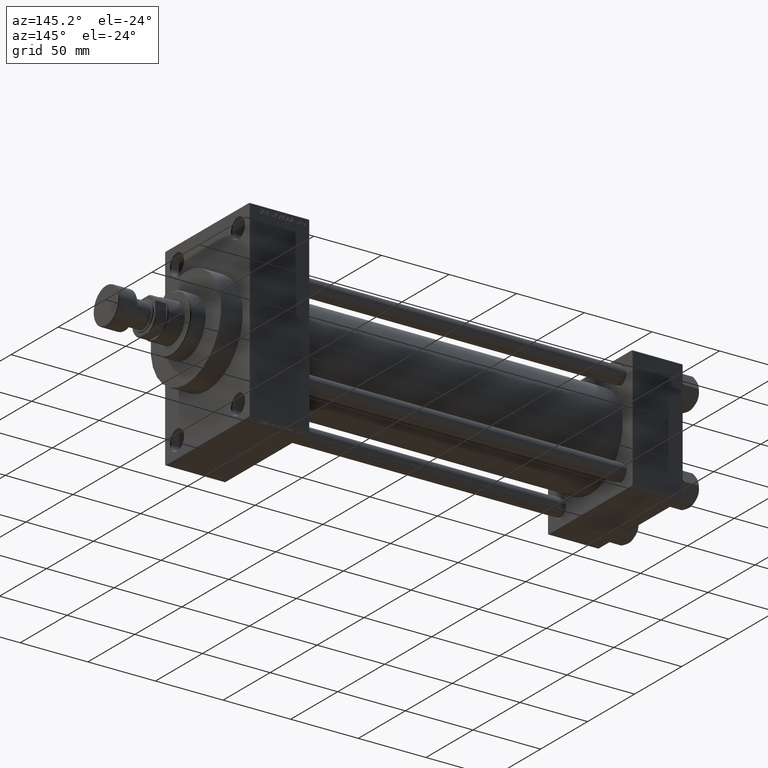
[diagram: clean part render]
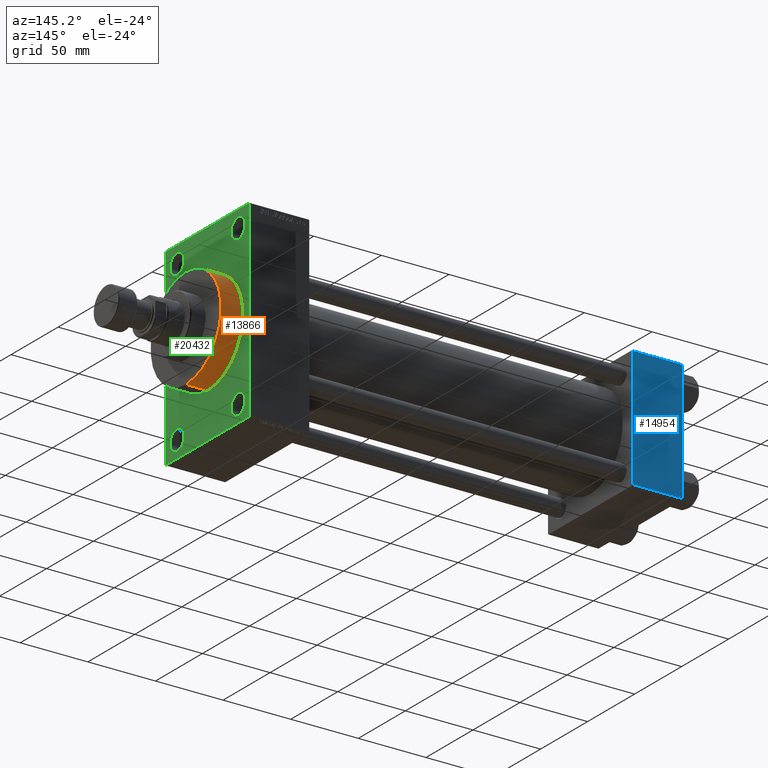
[diagram: same view with three faces highlighted in distinct colors, each labeled with its STEP entity id]
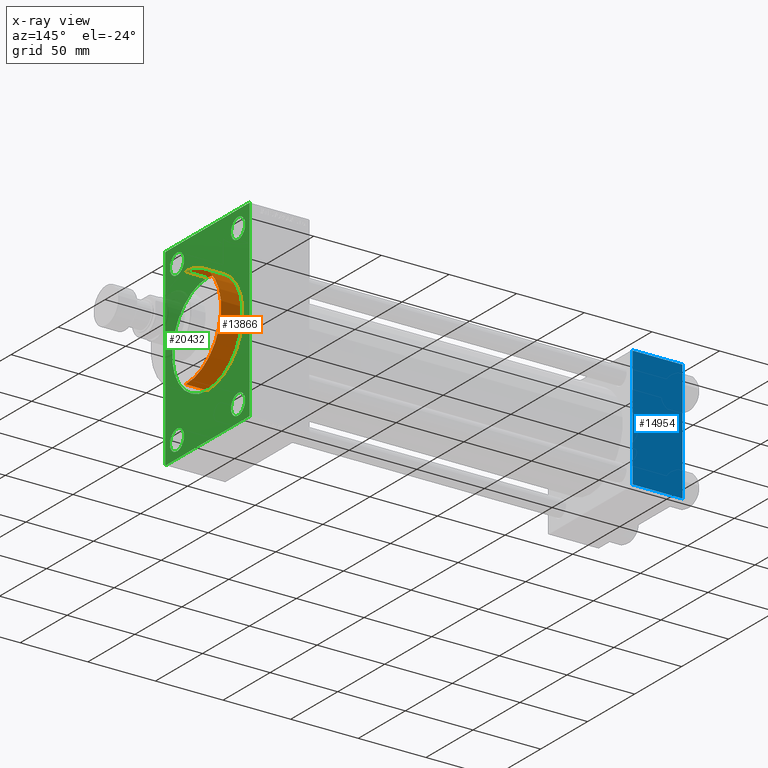
[diagram: x-ray of the same camera — body ghosted, the three highlighted faces saturated]
A machine part, auxiliary view with three faces highlighted in distinct colors.
The next image is the same camera in x-ray (body ghosted, the three faces saturated) — at least one of them is partly hidden behind the body in this view.
Their STEP definitions:

[orange] entity #13866 — the highlighted cylindrical surface (partial cylindrical patch) has radius 37.5 mm, axis along (-1, -0, -0).
#349 = AXIS2_PLACEMENT_3D ( 'NONE', #29204, #28963, #39817 ) ;
#1273 = CARTESIAN_POINT ( 'NONE',  ( 335.9999999999999432, 4.592425496802575156E-15, -37.50000000000000711 ) ) ;
#4486 = AXIS2_PLACEMENT_3D ( 'NONE', #5933, #31743, #18153 ) ;
#4635 = LINE ( 'NONE', #1273, #47375 ) ;
#5492 = ORIENTED_EDGE ( 'NONE', *, *, #46795, .F. ) ;
#5684 = VECTOR ( 'NONE', #19776, 1000.000000000000000 ) ;
#5933 = CARTESIAN_POINT ( 'NONE',  ( 335.9999999999999432, 0.000000000000000000, 0.000000000000000000 ) ) ;
#6948 = ORIENTED_EDGE ( 'NONE', *, *, #11194, .F. ) ;
#11038 = CARTESIAN_POINT ( 'NONE',  ( 335.9999999999999432, 4.592425496802575156E-15, -37.50000000000000711 ) ) ;
#11194 = EDGE_CURVE ( 'NONE', #21022, #46215, #15449, .T. ) ;
#13866 = ADVANCED_FACE ( 'NONE', ( #38399 ), #24130, .T. ) ;
#15055 = ORIENTED_EDGE ( 'NONE', *, *, #33110, .T. ) ;
#15449 = LINE ( 'NONE', #45101, #5684 ) ;
#17112 = CARTESIAN_POINT ( 'NONE',  ( 335.9999999999999432, 0.000000000000000000, 37.50000000000000711 ) ) ;
#18153 = DIRECTION ( 'NONE',  ( 0.000000000000000000, 0.000000000000000000, -1.000000000000000000 ) ) ;
#18808 = CIRCLE ( 'NONE', #349, 37.50000000000000711 ) ;
#19776 = DIRECTION ( 'NONE',  ( -1.000000000000000000, -0.000000000000000000, -0.000000000000000000 ) ) ;
#21022 = VERTEX_POINT ( 'NONE', #17112 ) ;
#22246 = DIRECTION ( 'NONE',  ( -1.000000000000000000, -0.000000000000000000, -0.000000000000000000 ) ) ;
#23896 = DIRECTION ( 'NONE',  ( 0.000000000000000000, 0.000000000000000000, 1.000000000000000000 ) ) ;
#24130 = CYLINDRICAL_SURFACE ( 'NONE', #46435, 37.50000000000000711 ) ;
#27888 = ORIENTED_EDGE ( 'NONE', *, *, #38853, .T. ) ;
#28963 = DIRECTION ( 'NONE',  ( 1.000000000000000000, 0.000000000000000000, 0.000000000000000000 ) ) ;
#29204 = CARTESIAN_POINT ( 'NONE',  ( 319.9999999999999432, 0.000000000000000000, 0.000000000000000000 ) ) ;
#31594 = VERTEX_POINT ( 'NONE', #33087 ) ;
#31743 = DIRECTION ( 'NONE',  ( 1.000000000000000000, 0.000000000000000000, 0.000000000000000000 ) ) ;
#33087 = CARTESIAN_POINT ( 'NONE',  ( 319.9999999999999432, 4.592425496802575156E-15, -37.50000000000000711 ) ) ;
#33110 = EDGE_CURVE ( 'NONE', #31594, #46215, #18808, .T. ) ;
#33505 = EDGE_LOOP ( 'NONE', ( #5492, #27888, #15055, #6948 ) ) ;
#36771 = VERTEX_POINT ( 'NONE', #11038 ) ;
#38399 = FACE_OUTER_BOUND ( 'NONE', #33505, .T. ) ;
#38853 = EDGE_CURVE ( 'NONE', #36771, #31594, #4635, .T. ) ;
#38868 = DIRECTION ( 'NONE',  ( -1.000000000000000000, -0.000000000000000000, -0.000000000000000000 ) ) ;
#39817 = DIRECTION ( 'NONE',  ( 0.000000000000000000, 0.000000000000000000, -1.000000000000000000 ) ) ;
#45101 = CARTESIAN_POINT ( 'NONE',  ( 335.9999999999999432, 0.000000000000000000, 37.50000000000000711 ) ) ;
#45866 = CARTESIAN_POINT ( 'NONE',  ( 335.9999999999999432, 0.000000000000000000, 0.000000000000000000 ) ) ;
#46074 = CIRCLE ( 'NONE', #4486, 37.50000000000000711 ) ;
#46215 = VERTEX_POINT ( 'NONE', #47053 ) ;
#46435 = AXIS2_PLACEMENT_3D ( 'NONE', #45866, #38868, #23896 ) ;
#46795 = EDGE_CURVE ( 'NONE', #36771, #21022, #46074, .T. ) ;
#47053 = CARTESIAN_POINT ( 'NONE',  ( 319.9999999999999432, 0.000000000000000000, 37.50000000000000711 ) ) ;
#47375 = VECTOR ( 'NONE', #22246, 1000.000000000000000 ) ;

[blue] entity #14954 — the highlighted planar face has unit normal (0, 1, 0).
#727 = VERTEX_POINT ( 'NONE', #1815 ) ;
#901 = DIRECTION ( 'NONE',  ( 0.000000000000000000, 0.000000000000000000, -1.000000000000000000 ) ) ;
#1140 = CARTESIAN_POINT ( 'NONE',  ( 37.00000000000000000, 44.99999999999998579, 45.00000000000001421 ) ) ;
#1815 = CARTESIAN_POINT ( 'NONE',  ( 37.00000000000000000, 44.99999999999998579, 44.50000000000001421 ) ) ;
#2821 = LINE ( 'NONE', #13030, #3386 ) ;
#3386 = VECTOR ( 'NONE', #25222, 1000.000000000000000 ) ;
#4171 = ORIENTED_EDGE ( 'NONE', *, *, #22675, .T. ) ;
#6224 = ORIENTED_EDGE ( 'NONE', *, *, #46681, .T. ) ;
#6603 = FACE_OUTER_BOUND ( 'NONE', #15131, .T. ) ;
#9541 = CARTESIAN_POINT ( 'NONE',  ( 0.000000000000000000, 44.99999999999998579, 44.50000000000001421 ) ) ;
#11360 = EDGE_CURVE ( 'NONE', #25230, #18169, #2821, .T. ) ;
#12952 = VECTOR ( 'NONE', #901, 1000.000000000000000 ) ;
#13030 = CARTESIAN_POINT ( 'NONE',  ( 37.00000000000000000, 44.99999999999998579, -44.49999999999998579 ) ) ;
#14469 = CARTESIAN_POINT ( 'NONE',  ( 37.00000000000000000, 44.99999999999998579, -44.49999999999995737 ) ) ;
#14954 = ADVANCED_FACE ( 'NONE', ( #6603 ), #17225, .T. ) ;
#15131 = EDGE_LOOP ( 'NONE', ( #6224, #25304, #26799, #4171 ) ) ;
#17225 = PLANE ( 'NONE',  #44162 ) ;
#17802 = CARTESIAN_POINT ( 'NONE',  ( 0.000000000000000000, 44.99999999999998579, 45.00000000000001421 ) ) ;
#18169 = VERTEX_POINT ( 'NONE', #42253 ) ;
#18948 = VECTOR ( 'NONE', #32524, 1000.000000000000000 ) ;
#22336 = DIRECTION ( 'NONE',  ( 1.000000000000000000, 0.000000000000000000, 0.000000000000000000 ) ) ;
#22675 = EDGE_CURVE ( 'NONE', #36294, #727, #29599, .T. ) ;
#25222 = DIRECTION ( 'NONE',  ( -1.000000000000000000, 0.000000000000000000, 0.000000000000000000 ) ) ;
#25230 = VERTEX_POINT ( 'NONE', #14469 ) ;
#25304 = ORIENTED_EDGE ( 'NONE', *, *, #11360, .T. ) ;
#26799 = ORIENTED_EDGE ( 'NONE', *, *, #38051, .F. ) ;
#29599 = LINE ( 'NONE', #44292, #44561 ) ;
#31946 = DIRECTION ( 'NONE',  ( -0.000000000000000000, 1.000000000000000000, 0.000000000000000000 ) ) ;
#32524 = DIRECTION ( 'NONE',  ( 0.000000000000000000, 0.000000000000000000, -1.000000000000000000 ) ) ;
#33937 = LINE ( 'NONE', #1140, #12952 ) ;
#34857 = CARTESIAN_POINT ( 'NONE',  ( 37.00000000000000000, 44.99999999999998579, 45.00000000000001421 ) ) ;
#36142 = LINE ( 'NONE', #17802, #18948 ) ;
#36294 = VERTEX_POINT ( 'NONE', #9541 ) ;
#38051 = EDGE_CURVE ( 'NONE', #36294, #18169, #36142, .T. ) ;
#42253 = CARTESIAN_POINT ( 'NONE',  ( 0.000000000000000000, 44.99999999999998579, -44.49999999999995737 ) ) ;
#42318 = DIRECTION ( 'NONE',  ( 0.000000000000000000, -0.000000000000000000, 1.000000000000000000 ) ) ;
#44162 = AXIS2_PLACEMENT_3D ( 'NONE', #34857, #31946, #42318 ) ;
#44292 = CARTESIAN_POINT ( 'NONE',  ( 37.00000000000000000, 44.99999999999998579, 44.50000000000001421 ) ) ;
#44561 = VECTOR ( 'NONE', #22336, 1000.000000000000000 ) ;
#46681 = EDGE_CURVE ( 'NONE', #727, #25230, #33937, .T. ) ;

[green] entity #20432 — the highlighted planar face has unit normal (-1, 0, 0).
#246 = VERTEX_POINT ( 'NONE', #27771 ) ;
#312 = DIRECTION ( 'NONE',  ( 0.000000000000000000, 0.000000000000000000, -1.000000000000000000 ) ) ;
#349 = AXIS2_PLACEMENT_3D ( 'NONE', #29204, #28963, #39817 ) ;
#635 = CARTESIAN_POINT ( 'NONE',  ( 319.9999999999999432, -32.50000000000000000, -58.49999999999999289 ) ) ;
#1181 = CIRCLE ( 'NONE', #35851, 7.500000000000047962 ) ;
#1465 = AXIS2_PLACEMENT_3D ( 'NONE', #24789, #31584, #35675 ) ;
#1497 = VERTEX_POINT ( 'NONE', #3121 ) ;
#1632 = FACE_BOUND ( 'NONE', #19681, .T. ) ;
#1661 = CARTESIAN_POINT ( 'NONE',  ( 319.9999999999999432, -32.50000000000000000, 66.00000000000005684 ) ) ;
#1805 = ORIENTED_EDGE ( 'NONE', *, *, #18211, .F. ) ;
#1833 = ORIENTED_EDGE ( 'NONE', *, *, #10002, .T. ) ;
#1874 = DIRECTION ( 'NONE',  ( -1.000000000000000000, 0.000000000000000000, -0.000000000000000000 ) ) ;
#2783 = CIRCLE ( 'NONE', #10492, 7.500000000000047962 ) ;
#3121 = CARTESIAN_POINT ( 'NONE',  ( 319.9999999999999432, -44.99999999999997158, -70.50000000000000000 ) ) ;
#3387 = LINE ( 'NONE', #25548, #20854 ) ;
#3455 = ORIENTED_EDGE ( 'NONE', *, *, #19365, .F. ) ;
#3987 = LINE ( 'NONE', #29799, #35103 ) ;
#4958 = CIRCLE ( 'NONE', #26534, 7.500000000000047962 ) ;
#5257 = EDGE_CURVE ( 'NONE', #31539, #14798, #3387, .T. ) ;
#5537 = DIRECTION ( 'NONE',  ( -1.000000000000000000, 0.000000000000000000, -0.000000000000000000 ) ) ;
#5716 = FACE_BOUND ( 'NONE', #35150, .T. ) ;
#6201 = EDGE_CURVE ( 'NONE', #31305, #47148, #27055, .T. ) ;
#6384 = EDGE_LOOP ( 'NONE', ( #39197, #40585 ) ) ;
#6775 = DIRECTION ( 'NONE',  ( 1.000000000000000000, 0.000000000000000000, 0.000000000000000000 ) ) ;
#6954 = CARTESIAN_POINT ( 'NONE',  ( 319.9999999999999432, 45.00000000000001421, -70.99999999999998579 ) ) ;
#7172 = DIRECTION ( 'NONE',  ( -0.000000000000000000, -0.7071067811865426878, -0.7071067811865524577 ) ) ;
#7346 = CARTESIAN_POINT ( 'NONE',  ( 319.9999999999999432, 45.00000000000001421, -70.49999999999997158 ) ) ;
#7994 = LINE ( 'NONE', #22700, #30310 ) ;
#8600 = CARTESIAN_POINT ( 'NONE',  ( 319.9999999999999432, 32.50000000000000711, 58.50000000000000711 ) ) ;
#8767 = ORIENTED_EDGE ( 'NONE', *, *, #37571, .T. ) ;
#9281 = ORIENTED_EDGE ( 'NONE', *, *, #47419, .T. ) ;
#9602 = AXIS2_PLACEMENT_3D ( 'NONE', #39823, #6775, #21005 ) ;
#9874 = DIRECTION ( 'NONE',  ( -1.000000000000000000, 0.000000000000000000, -0.000000000000000000 ) ) ;
#10002 = EDGE_CURVE ( 'NONE', #18709, #1497, #7994, .T. ) ;
#10374 = DIRECTION ( 'NONE',  ( 0.000000000000000000, -1.000000000000000000, -1.541976423090495387E-16 ) ) ;
#10443 = CARTESIAN_POINT ( 'NONE',  ( 319.9999999999999432, 45.00000000000002132, 70.50000000000000000 ) ) ;
#10492 = AXIS2_PLACEMENT_3D ( 'NONE', #13732, #9874, #46528 ) ;
#11051 = DIRECTION ( 'NONE',  ( 0.000000000000000000, -1.000000000000000000, -1.541976423090495633E-16 ) ) ;
#11688 = DIRECTION ( 'NONE',  ( 0.000000000000000000, -4.886545002751570165E-17, -1.000000000000000000 ) ) ;
#11756 = CARTESIAN_POINT ( 'NONE',  ( 319.9999999999999432, -32.50000000000000000, -66.00000000000004263 ) ) ;
#11894 = ORIENTED_EDGE ( 'NONE', *, *, #26207, .T. ) ;
#12004 = FACE_BOUND ( 'NONE', #14402, .T. ) ;
#13523 = LINE ( 'NONE', #31631, #45903 ) ;
#13605 = DIRECTION ( 'NONE',  ( -1.000000000000000000, 0.000000000000000000, -0.000000000000000000 ) ) ;
#13732 = CARTESIAN_POINT ( 'NONE',  ( 319.9999999999999432, -32.50000000000000000, 58.50000000000000711 ) ) ;
#14072 = DIRECTION ( 'NONE',  ( 0.000000000000000000, 0.000000000000000000, 1.000000000000000000 ) ) ;
#14336 = CARTESIAN_POINT ( 'NONE',  ( 319.9999999999999432, 32.50000000000000711, 66.00000000000005684 ) ) ;
#14402 = EDGE_LOOP ( 'NONE', ( #45079, #28536 ) ) ;
#14711 = ORIENTED_EDGE ( 'NONE', *, *, #18485, .T. ) ;
#14798 = VERTEX_POINT ( 'NONE', #22552 ) ;
#14812 = EDGE_CURVE ( 'NONE', #38269, #33385, #21064, .T. ) ;
#15189 = CARTESIAN_POINT ( 'NONE',  ( 319.9999999999999432, 32.50000000000000711, -50.99999999999993605 ) ) ;
#15249 = AXIS2_PLACEMENT_3D ( 'NONE', #39887, #13605, #14072 ) ;
#16035 = DIRECTION ( 'NONE',  ( -1.000000000000000000, 0.000000000000000000, -0.000000000000000000 ) ) ;
#16186 = VERTEX_POINT ( 'NONE', #15189 ) ;
#16331 = DIRECTION ( 'NONE',  ( -0.000000000000000000, 0.000000000000000000, 1.000000000000000000 ) ) ;
#16395 = CARTESIAN_POINT ( 'NONE',  ( 319.9999999999999432, -32.50000000000000000, 58.50000000000000711 ) ) ;
#16638 = EDGE_CURVE ( 'NONE', #47148, #31305, #4958, .T. ) ;
#17186 = VERTEX_POINT ( 'NONE', #10443 ) ;
#17294 = VERTEX_POINT ( 'NONE', #26091 ) ;
#17600 = CIRCLE ( 'NONE', #1465, 7.500000000000062172 ) ;
#18134 = CARTESIAN_POINT ( 'NONE',  ( 319.9999999999999432, 44.49999999999996447, 71.00000000000000000 ) ) ;
#18211 = EDGE_CURVE ( 'NONE', #46215, #31594, #25004, .T. ) ;
#18485 = EDGE_CURVE ( 'NONE', #22636, #23451, #1181, .T. ) ;
#18709 = VERTEX_POINT ( 'NONE', #47481 ) ;
#18808 = CIRCLE ( 'NONE', #349, 37.50000000000000711 ) ;
#19179 = DIRECTION ( 'NONE',  ( 0.000000000000000000, 0.000000000000000000, 1.000000000000000000 ) ) ;
#19365 = EDGE_CURVE ( 'NONE', #17186, #26416, #3987, .T. ) ;
#19632 = DIRECTION ( 'NONE',  ( -1.000000000000000000, 0.000000000000000000, -0.000000000000000000 ) ) ;
#19681 = EDGE_LOOP ( 'NONE', ( #28568, #9281 ) ) ;
#20184 = FACE_BOUND ( 'NONE', #30803, .T. ) ;
#20243 = DIRECTION ( 'NONE',  ( 0.000000000000000000, 0.000000000000000000, 1.000000000000000000 ) ) ;
#20421 = CARTESIAN_POINT ( 'NONE',  ( 319.9999999999999432, 0.000000000000000000, 0.000000000000000000 ) ) ;
#20432 = ADVANCED_FACE ( 'NONE', ( #5716, #12004, #1632, #38765, #20184, #45508 ), #27422, .F. ) ;
#20614 = AXIS2_PLACEMENT_3D ( 'NONE', #38456, #19632, #23721 ) ;
#20854 = VECTOR ( 'NONE', #10374, 1000.000000000000000 ) ;
#21005 = DIRECTION ( 'NONE',  ( 0.000000000000000000, 0.000000000000000000, -1.000000000000000000 ) ) ;
#21020 = ORIENTED_EDGE ( 'NONE', *, *, #28497, .F. ) ;
#21064 = CIRCLE ( 'NONE', #38021, 7.500000000000055067 ) ;
#21101 = EDGE_CURVE ( 'NONE', #23451, #22636, #2783, .T. ) ;
#21125 = LINE ( 'NONE', #28602, #24942 ) ;
#22110 = CARTESIAN_POINT ( 'NONE',  ( 319.9999999999999432, -32.50000000000000000, 50.99999999999996447 ) ) ;
#22552 = CARTESIAN_POINT ( 'NONE',  ( 319.9999999999999432, -44.49999999999995026, 70.99999999999998579 ) ) ;
#22636 = VERTEX_POINT ( 'NONE', #22110 ) ;
#22700 = CARTESIAN_POINT ( 'NONE',  ( 319.9999999999999432, -44.99999999999997158, 70.99999999999998579 ) ) ;
#22840 = DIRECTION ( 'NONE',  ( 0.000000000000000000, 0.000000000000000000, 1.000000000000000000 ) ) ;
#23451 = VERTEX_POINT ( 'NONE', #1661 ) ;
#23721 = DIRECTION ( 'NONE',  ( 0.000000000000000000, 0.000000000000000000, 1.000000000000000000 ) ) ;
#24243 = CARTESIAN_POINT ( 'NONE',  ( 319.9999999999999432, 32.50000000000000711, 58.50000000000000711 ) ) ;
#24789 = CARTESIAN_POINT ( 'NONE',  ( 319.9999999999999432, 32.50000000000000711, -58.50000000000000000 ) ) ;
#24942 = VECTOR ( 'NONE', #39702, 1000.000000000000114 ) ;
#25004 = CIRCLE ( 'NONE', #9602, 37.50000000000000711 ) ;
#25548 = CARTESIAN_POINT ( 'NONE',  ( 319.9999999999999432, 45.00000000000002132, 71.00000000000000000 ) ) ;
#25607 = LINE ( 'NONE', #33107, #40736 ) ;
#25800 = CARTESIAN_POINT ( 'NONE',  ( 319.9999999999999432, 32.50000000000000711, 50.99999999999996447 ) ) ;
#26091 = CARTESIAN_POINT ( 'NONE',  ( 319.9999999999999432, 44.50000000000001421, -70.99999999999998579 ) ) ;
#26207 = EDGE_CURVE ( 'NONE', #14798, #18709, #36847, .T. ) ;
#26416 = VERTEX_POINT ( 'NONE', #7346 ) ;
#26454 = DIRECTION ( 'NONE',  ( -1.000000000000000000, 0.000000000000000000, -0.000000000000000000 ) ) ;
#26534 = AXIS2_PLACEMENT_3D ( 'NONE', #24243, #27398, #42116 ) ;
#27055 = CIRCLE ( 'NONE', #44752, 7.500000000000047962 ) ;
#27398 = DIRECTION ( 'NONE',  ( -1.000000000000000000, 0.000000000000000000, -0.000000000000000000 ) ) ;
#27422 = PLANE ( 'NONE',  #35133 ) ;
#27771 = CARTESIAN_POINT ( 'NONE',  ( 319.9999999999999432, -44.49999999999988631, -71.00000000000000000 ) ) ;
#27795 = VERTEX_POINT ( 'NONE', #38807 ) ;
#28497 = EDGE_CURVE ( 'NONE', #17294, #246, #40000, .T. ) ;
#28536 = ORIENTED_EDGE ( 'NONE', *, *, #14812, .T. ) ;
#28568 = ORIENTED_EDGE ( 'NONE', *, *, #45937, .T. ) ;
#28602 = CARTESIAN_POINT ( 'NONE',  ( 319.9999999999999432, -44.49999999999991473, -71.00000000000000000 ) ) ;
#28963 = DIRECTION ( 'NONE',  ( 1.000000000000000000, 0.000000000000000000, 0.000000000000000000 ) ) ;
#29204 = CARTESIAN_POINT ( 'NONE',  ( 319.9999999999999432, 0.000000000000000000, 0.000000000000000000 ) ) ;
#29799 = CARTESIAN_POINT ( 'NONE',  ( 319.9999999999999432, 45.00000000000002132, 71.00000000000000000 ) ) ;
#30310 = VECTOR ( 'NONE', #312, 1000.000000000000000 ) ;
#30680 = ORIENTED_EDGE ( 'NONE', *, *, #46864, .T. ) ;
#30803 = EDGE_LOOP ( 'NONE', ( #1805, #38019 ) ) ;
#30902 = VECTOR ( 'NONE', #7172, 1000.000000000000000 ) ;
#31305 = VERTEX_POINT ( 'NONE', #14336 ) ;
#31539 = VERTEX_POINT ( 'NONE', #18134 ) ;
#31584 = DIRECTION ( 'NONE',  ( -1.000000000000000000, 0.000000000000000000, -0.000000000000000000 ) ) ;
#31594 = VERTEX_POINT ( 'NONE', #33087 ) ;
#31631 = CARTESIAN_POINT ( 'NONE',  ( 319.9999999999999432, 45.00000000000001421, -70.49999999999997158 ) ) ;
#33087 = CARTESIAN_POINT ( 'NONE',  ( 319.9999999999999432, 4.592425496802575156E-15, -37.50000000000000711 ) ) ;
#33107 = CARTESIAN_POINT ( 'NONE',  ( 319.9999999999999432, 44.49999999999996447, 71.00000000000000000 ) ) ;
#33110 = EDGE_CURVE ( 'NONE', #31594, #46215, #18808, .T. ) ;
#33385 = VERTEX_POINT ( 'NONE', #11756 ) ;
#33547 = EDGE_CURVE ( 'NONE', #1497, #246, #21125, .T. ) ;
#35103 = VECTOR ( 'NONE', #11688, 1000.000000000000000 ) ;
#35133 = AXIS2_PLACEMENT_3D ( 'NONE', #20421, #1874, #16331 ) ;
#35150 = EDGE_LOOP ( 'NONE', ( #14711, #36938 ) ) ;
#35219 = EDGE_LOOP ( 'NONE', ( #1833, #37489, #21020, #8767, #3455, #30680, #47590, #11894 ) ) ;
#35675 = DIRECTION ( 'NONE',  ( 0.000000000000000000, 0.000000000000000000, 1.000000000000000000 ) ) ;
#35851 = AXIS2_PLACEMENT_3D ( 'NONE', #16395, #5537, #20243 ) ;
#36847 = LINE ( 'NONE', #40215, #30902 ) ;
#36938 = ORIENTED_EDGE ( 'NONE', *, *, #21101, .T. ) ;
#37489 = ORIENTED_EDGE ( 'NONE', *, *, #33547, .T. ) ;
#37571 = EDGE_CURVE ( 'NONE', #17294, #26416, #13523, .T. ) ;
#38019 = ORIENTED_EDGE ( 'NONE', *, *, #33110, .F. ) ;
#38021 = AXIS2_PLACEMENT_3D ( 'NONE', #635, #16035, #19179 ) ;
#38269 = VERTEX_POINT ( 'NONE', #42360 ) ;
#38456 = CARTESIAN_POINT ( 'NONE',  ( 319.9999999999999432, -32.50000000000000000, -58.49999999999999289 ) ) ;
#38683 = VECTOR ( 'NONE', #11051, 1000.000000000000000 ) ;
#38765 = FACE_BOUND ( 'NONE', #6384, .T. ) ;
#38807 = CARTESIAN_POINT ( 'NONE',  ( 319.9999999999999432, 32.50000000000000711, -66.00000000000005684 ) ) ;
#39197 = ORIENTED_EDGE ( 'NONE', *, *, #16638, .T. ) ;
#39702 = DIRECTION ( 'NONE',  ( 0.000000000000000000, 0.7071067811865965336, -0.7071067811864985009 ) ) ;
#39817 = DIRECTION ( 'NONE',  ( 0.000000000000000000, 0.000000000000000000, -1.000000000000000000 ) ) ;
#39823 = CARTESIAN_POINT ( 'NONE',  ( 319.9999999999999432, 0.000000000000000000, 0.000000000000000000 ) ) ;
#39887 = CARTESIAN_POINT ( 'NONE',  ( 319.9999999999999432, 32.50000000000000711, -58.50000000000000000 ) ) ;
#40000 = LINE ( 'NONE', #6954, #38683 ) ;
#40215 = CARTESIAN_POINT ( 'NONE',  ( 319.9999999999999432, -44.99999999999997158, 70.49999999999998579 ) ) ;
#40585 = ORIENTED_EDGE ( 'NONE', *, *, #6201, .T. ) ;
#40736 = VECTOR ( 'NONE', #47571, 1000.000000000000000 ) ;
#42116 = DIRECTION ( 'NONE',  ( 0.000000000000000000, 0.000000000000000000, 1.000000000000000000 ) ) ;
#42360 = CARTESIAN_POINT ( 'NONE',  ( 319.9999999999999432, -32.50000000000000000, -50.99999999999992895 ) ) ;
#43747 = CIRCLE ( 'NONE', #15249, 7.500000000000062172 ) ;
#44752 = AXIS2_PLACEMENT_3D ( 'NONE', #8600, #26454, #22840 ) ;
#44891 = EDGE_CURVE ( 'NONE', #33385, #38269, #46006, .T. ) ;
#45079 = ORIENTED_EDGE ( 'NONE', *, *, #44891, .T. ) ;
#45508 = FACE_OUTER_BOUND ( 'NONE', #35219, .T. ) ;
#45903 = VECTOR ( 'NONE', #46559, 999.9999999999998863 ) ;
#45937 = EDGE_CURVE ( 'NONE', #27795, #16186, #43747, .T. ) ;
#46006 = CIRCLE ( 'NONE', #20614, 7.500000000000055067 ) ;
#46215 = VERTEX_POINT ( 'NONE', #47053 ) ;
#46528 = DIRECTION ( 'NONE',  ( 0.000000000000000000, 0.000000000000000000, 1.000000000000000000 ) ) ;
#46559 = DIRECTION ( 'NONE',  ( -0.000000000000000000, 0.7071067811865376918, 0.7071067811865574537 ) ) ;
#46864 = EDGE_CURVE ( 'NONE', #17186, #31539, #25607, .T. ) ;
#47053 = CARTESIAN_POINT ( 'NONE',  ( 319.9999999999999432, 0.000000000000000000, 37.50000000000000711 ) ) ;
#47148 = VERTEX_POINT ( 'NONE', #25800 ) ;
#47419 = EDGE_CURVE ( 'NONE', #16186, #27795, #17600, .T. ) ;
#47481 = CARTESIAN_POINT ( 'NONE',  ( 319.9999999999999432, -44.99999999999997158, 70.49999999999998579 ) ) ;
#47571 = DIRECTION ( 'NONE',  ( 0.000000000000000000, -0.7071067811865867636, 0.7071067811865081598 ) ) ;
#47590 = ORIENTED_EDGE ( 'NONE', *, *, #5257, .T. ) ;